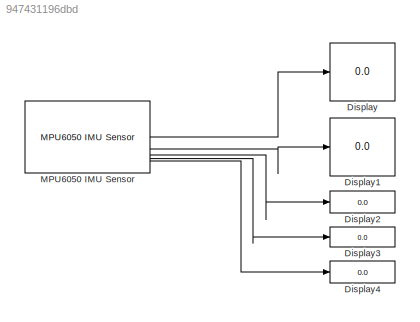
MODEL slx_947431196dbd
KIND model
CONFIG AbsTol = auto
CONFIG EnableMultiTasking = on
CONFIG FixedStep = auto
CONFIG MaxStep = auto
CONFIG MinStep = auto
CONFIG RelTol = 1e-3
CONFIG SampleTimeConstraint = Unconstrained
CONFIG SolverName = FixedStepAuto
CONFIG StartTime = 0.0
CONFIG StopTime = inf
BLOCK [Display] Display
  Decimation = 1
BLOCK [Display] Display1
  Decimation = 1
BLOCK [Display] Display2
  Decimation = 1
BLOCK [Display] Display3
  Decimation = 1
BLOCK [Display] Display4
  Decimation = 1
BLOCK [Reference] MPU6050 IMU Sensor  REF=arduinosensorlib/MPU6050 IMU Sensor
  SourceBlock = arduinosensorlib/MPU6050 IMU Sensor
  SourceType = MPU6050
LINE MPU6050 IMU Sensor:1 -> Display:1
LINE MPU6050 IMU Sensor:2 -> Display1:1
LINE MPU6050 IMU Sensor:3 -> Display2:1
LINE MPU6050 IMU Sensor:4 -> Display3:1
LINE MPU6050 IMU Sensor:5 -> Display4:1
